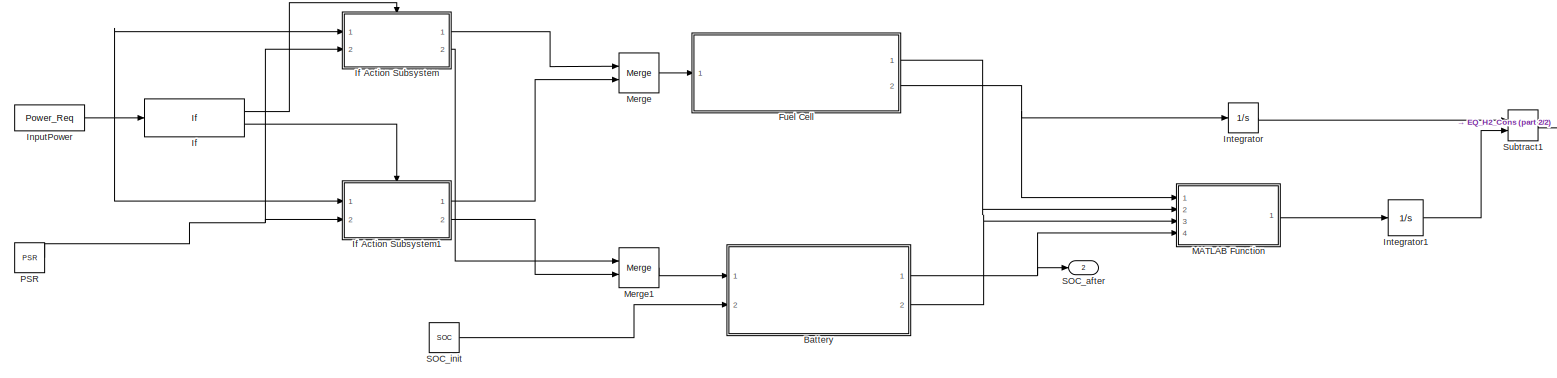
[diagram: root canvas - part 1/2, most of the canvas]
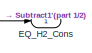
[diagram: root canvas - part 2/2, middle right region]
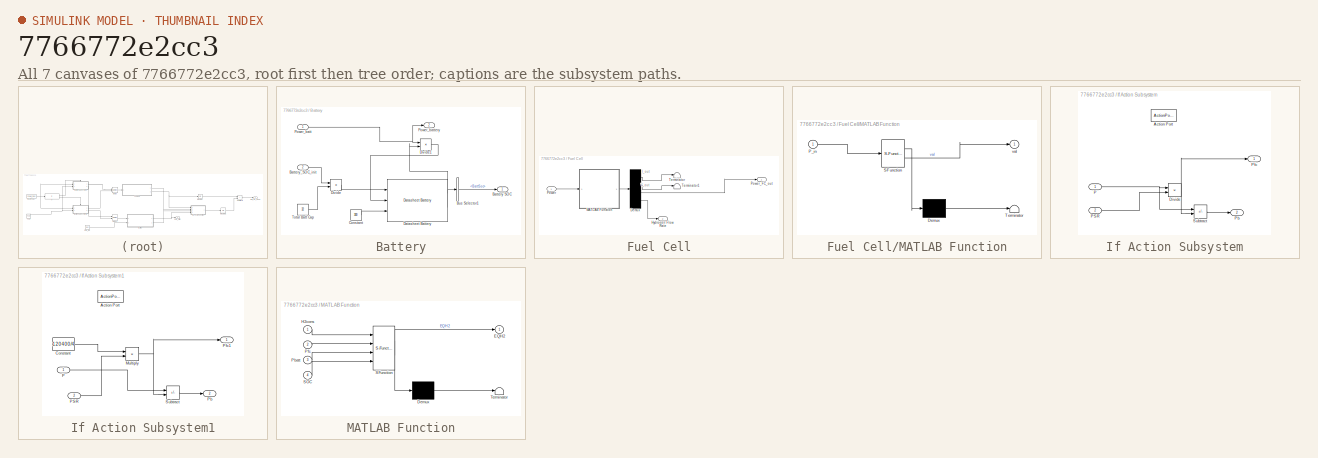
[diagram: thumbnail index - all 7 canvases of the model, root first then tree order]
MODEL slx_7766772e2cc3
KIND model
CONFIG AbsTol = auto
CONFIG EnableMultiTasking = off
CONFIG FixedStep = auto
CONFIG MaxStep = auto
CONFIG MinStep = auto
CONFIG RelTol = 1e-3
CONFIG SampleTimeConstraint = Unconstrained
CONFIG Solver = VariableStepAuto
CONFIG SolverName = VariableStepAuto
CONFIG StartTime = 0.0
CONFIG StopTime = 1
WORKSPACE source: mxarray member
WORKSPACE PSR = 0.5
WORKSPACE Power_Req = 0
WORKSPACE SOC = 0.4
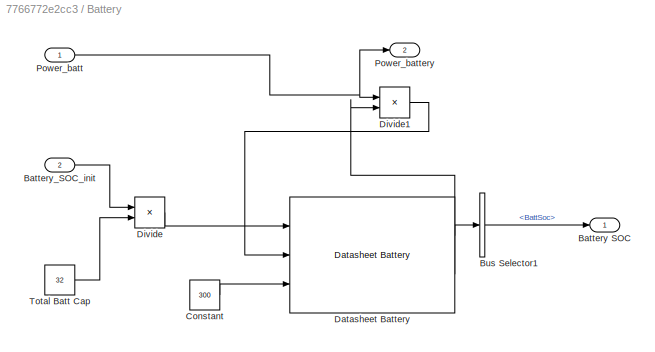
BLOCK [SubSystem] Battery
  Ports = [2, 2]
  RequestExecContextInheritance = off
BLOCK [Outport] Battery/Battery SOC
BLOCK [Inport] Battery/Battery_SOC_init
  Port = 2
BLOCK [BusSelector] Battery/Bus Selector1
  OutputSignals = BattSoc
  Ports = [1, 1]
BLOCK [Constant] Battery/Constant
  Value = 300
BLOCK [Reference] Battery/Datasheet Battery  REF=autolibdatasheetbattery/Datasheet Battery
  Ports = [3, 2]
  SourceBlock = autolibdatasheetbattery/Datasheet Battery
  SourceProductBaseCode = PW
  SourceType = Datasheet Battery
BLOCK [Product] Battery/Divide
  Inputs = **
  Ports = [2, 1]
BLOCK [Product] Battery/Divide1
  Inputs = */
  Ports = [2, 1]
BLOCK [Inport] Battery/Power_batt
BLOCK [Outport] Battery/Power_battery
  Port = 2
BLOCK [Constant] Battery/Total Batt Cap
  Value = 32
BLOCK [Outport] EQ_H2_Cons
BLOCK [SubSystem] Fuel Cell
  Ports = [1, 2]
  RequestExecContextInheritance = off
BLOCK [Demux] Fuel Cell/Demux
  Ports = [1, 4]
BLOCK [Outport] Fuel Cell/Hydrogen Flow Rate
  Port = 2
BLOCK [SubSystem] Fuel Cell/MATLAB Function
  ErrorFcn = Stateflow.Translate.translate
  PermitHierarchicalResolution = ExplicitOnly
  Ports = [1, 1]
  RequestExecContextInheritance = off
  SFBlockType = MATLAB Function
  TreatAsAtomicUnit = on
BLOCK [Demux] Fuel Cell/MATLAB Function/ Demux 
  Outputs = 1
  Ports = [1, 1]
BLOCK [S-Function] Fuel Cell/MATLAB Function/ SFunction 
  EnableBusSupport = on
  FunctionName = sf_sfun
  PortCounts = [1 2]
  Ports = [1, 2]
  SFcnIsStateOwnerBlock = off
  SFunctionDeploymentMode = off
  Tag = Stateflow S-Function 2
BLOCK [Terminator] Fuel Cell/MATLAB Function/ Terminator 
BLOCK [Inport] Fuel Cell/MATLAB Function/P_in
BLOCK [Outport] Fuel Cell/MATLAB Function/val
BLOCK [Inport] Fuel Cell/Power
BLOCK [Outport] Fuel Cell/Power_FC_out
BLOCK [Terminator] Fuel Cell/Terminator
BLOCK [Terminator] Fuel Cell/Terminator1
BLOCK [If] If
  Ports = [1, 2]
BLOCK [SubSystem] If Action Subsystem
  Ports = [2, 2, 0, 0, 0, 0, 0, 1]
  RequestExecContextInheritance = off
  TreatAsAtomicUnit = on
BLOCK [ActionPort] If Action Subsystem/Action Port
  ActionPortLabel = if(u1 > 0)
BLOCK [Product] If Action Subsystem/Divide
  Inputs = **
  Ports = [2, 1]
BLOCK [Inport] If Action Subsystem/P
BLOCK [Inport] If Action Subsystem/PSR
  Port = 2
BLOCK [Outport] If Action Subsystem/Pb
  Port = 2
BLOCK [Outport] If Action Subsystem/Pfc
BLOCK [Sum] If Action Subsystem/Subtract
  IconShape = rectangular
  Inputs = +-
  Ports = [2, 1]
BLOCK [SubSystem] If Action Subsystem1
  Ports = [2, 2, 0, 0, 0, 0, 0, 1]
  RequestExecContextInheritance = off
  TreatAsAtomicUnit = on
BLOCK [ActionPort] If Action Subsystem1/Action Port
  ActionPortLabel = else
BLOCK [Constant] If Action Subsystem1/Constant
  Value = 120400/4
BLOCK [Product] If Action Subsystem1/Multiply
  Inputs = **
  Ports = [2, 1]
BLOCK [Inport] If Action Subsystem1/P
BLOCK [Inport] If Action Subsystem1/PSR
  Port = 2
BLOCK [Outport] If Action Subsystem1/Pb
  Port = 2
BLOCK [Outport] If Action Subsystem1/Pfc1
BLOCK [Sum] If Action Subsystem1/Subtract
  IconShape = rectangular
  Inputs = +-
  Ports = [2, 1]
BLOCK [Constant] InputPower
  Value = Power_Req
BLOCK [Integrator] Integrator
  Ports = [1, 1]
BLOCK [Integrator] Integrator1
  Ports = [1, 1]
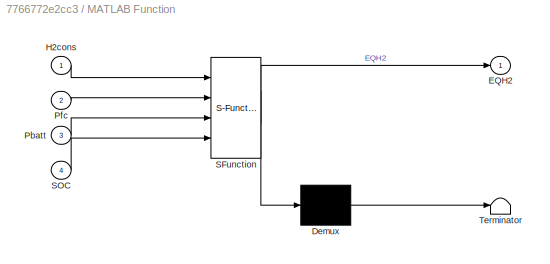
BLOCK [SubSystem] MATLAB Function
  ErrorFcn = Stateflow.Translate.translate
  PermitHierarchicalResolution = ExplicitOnly
  Ports = [4, 1]
  RequestExecContextInheritance = off
  SFBlockType = MATLAB Function
  TreatAsAtomicUnit = on
BLOCK [Demux] MATLAB Function/ Demux 
  Outputs = 1
  Ports = [1, 1]
BLOCK [S-Function] MATLAB Function/ SFunction 
  EnableBusSupport = on
  FunctionName = sf_sfun
  PortCounts = [4 2]
  Ports = [4, 2]
  SFcnIsStateOwnerBlock = off
  SFunctionDeploymentMode = off
  Tag = Stateflow S-Function 1
BLOCK [Terminator] MATLAB Function/ Terminator 
BLOCK [Outport] MATLAB Function/EQH2
BLOCK [Inport] MATLAB Function/H2cons
BLOCK [Inport] MATLAB Function/Pbatt
  Port = 3
BLOCK [Inport] MATLAB Function/Pfc
  Port = 2
BLOCK [Inport] MATLAB Function/SOC
  Port = 4
BLOCK [Merge] Merge
  Ports = [2, 1]
BLOCK [Merge] Merge1
  Ports = [2, 1]
BLOCK [Constant] PSR
  Value = PSR
BLOCK [Outport] SOC_after
  Port = 2
BLOCK [Constant] SOC_init
  Value = SOC
BLOCK [Sum] Subtract1
  IconShape = rectangular
  Ports = [2, 1]
ANNOTATION Fuel Cell: I_out
ANNOTATION Fuel Cell: V_out
LINE Battery/Battery_SOC_init:1 -> Battery/Divide:1
LINE Battery/Bus Selector1:1 -> Battery/Battery SOC:1
LINE Battery/Constant:1 -> Battery/Datasheet Battery:3
LINE Battery/Datasheet Battery:1 -> Battery/Bus Selector1:1
LINE Battery/Datasheet Battery:2 -> Battery/Divide1:2
LINE Battery/Divide1:1 -> Battery/Datasheet Battery:2
LINE Battery/Divide:1 -> Battery/Datasheet Battery:1
NET Battery/Power_batt:1 -> Battery/Divide1:1, Battery/Power_battery:1
LINE Battery/Total Batt Cap:1 -> Battery/Divide:2
NET Battery:1 -> MATLAB Function:4, SOC_after:1
LINE Battery:2 -> MATLAB Function:3
LINE Fuel Cell/Demux:1 -> Fuel Cell/Terminator:1
LINE Fuel Cell/Demux:2 -> Fuel Cell/Terminator1:1
LINE Fuel Cell/Demux:3 -> Fuel Cell/Power_FC_out:1
LINE Fuel Cell/Demux:4 -> Fuel Cell/Hydrogen Flow Rate:1
LINE Fuel Cell/MATLAB Function:1 -> Fuel Cell/Demux:1
LINE Fuel Cell/Power:1 -> Fuel Cell/MATLAB Function:1
LINE Fuel Cell:1 -> MATLAB Function:2
NET Fuel Cell:2 -> Integrator:1, MATLAB Function:1
NET If Action Subsystem/Divide:1 -> If Action Subsystem/Pfc:1, If Action Subsystem/Subtract:2
NET If Action Subsystem/P:1 -> If Action Subsystem/Divide:1, If Action Subsystem/Subtract:1
LINE If Action Subsystem/PSR:1 -> If Action Subsystem/Divide:2
LINE If Action Subsystem/Subtract:1 -> If Action Subsystem/Pb:1
LINE If Action Subsystem1/Constant:1 -> If Action Subsystem1/Multiply:1
NET If Action Subsystem1/Multiply:1 -> If Action Subsystem1/Pfc1:1, If Action Subsystem1/Subtract:2
LINE If Action Subsystem1/P:1 -> If Action Subsystem1/Subtract:1
LINE If Action Subsystem1/PSR:1 -> If Action Subsystem1/Multiply:2
LINE If Action Subsystem1/Subtract:1 -> If Action Subsystem1/Pb:1
LINE If Action Subsystem1:1 -> Merge:2
LINE If Action Subsystem1:2 -> Merge1:2
LINE If Action Subsystem:1 -> Merge:1
LINE If Action Subsystem:2 -> Merge1:1
LINE If:1 -> If Action Subsystem:ifaction
LINE If:2 -> If Action Subsystem1:ifaction
NET InputPower:1 -> If Action Subsystem1:1, If Action Subsystem:1, If:1
LINE Integrator1:1 -> Subtract1:2
LINE Integrator:1 -> Subtract1:1
LINE MATLAB Function:1 -> Integrator1:1
LINE Merge1:1 -> Battery:1
LINE Merge:1 -> Fuel Cell:1
NET PSR:1 -> If Action Subsystem1:2, If Action Subsystem:2
LINE SOC_init:1 -> Battery:2
LINE Subtract1:1 -> EQ_H2_Cons:1
note: NET lines group one-source signal fan-out (src -> all destinations, sorted); 1:1 wires keep LINE
CHART MATLAB Function states=1 transitions=1
  STATE_LABEL 'eML_blk_kernel()'
  STATE_LABEL 'SCRIPT:\nfunction EQH2 = fcn(H2cons,Pfc,Pbatt, SOC)\n   \n    if(Pfc==0)\n        EQH2 = (1-(2*.6*(SOC-0.5*1.1)/(1.1)))*(2.0826e-4)*Pbatt;\n    else\n        EQH2 = (1-(2*.6*(SOC-0.5*1.1)/(1.1)))*(H2cons/Pfc)*Pbatt;\n    end\n\nend'
CHART Fuel Cell/MATLAB Function states=1 transitions=1
  STATE_LABEL 'eML_blk_kernel()'
  STATE_LABEL 'SCRIPT:\nfunction val = fuel_cell_map_vals(P_in)\nN=900; %Number of cells in fuel cell\nM=2; % Molar mass of Hydrogen\nexcess_lambda = 1.2; % Excess Hydrogen ratio\n\nV = [900, 842.690414515993, 806.420580084826, 784.432402993841, 768.291434042714, 755.354408376177, 744.443945340785,...\n    734.931994240399, 726.443664778714, 718.737145027913, 711.647327501233, 705.056447748431, 698.877552854897, 693.04...<+3608ch>'
CHART  states=0 transitions=0
CHART  states=0 transitions=0
